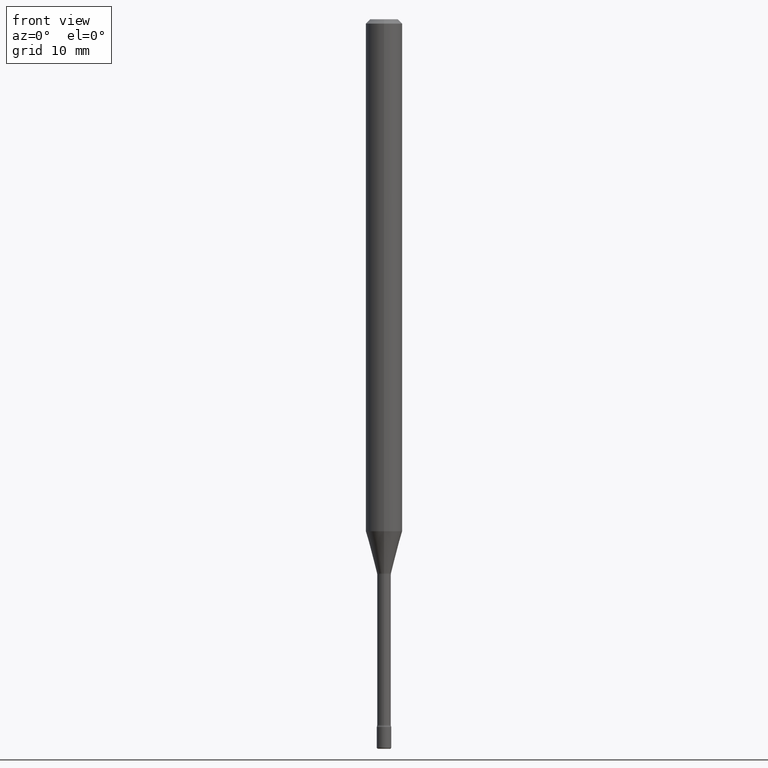
[diagram: clean part render]
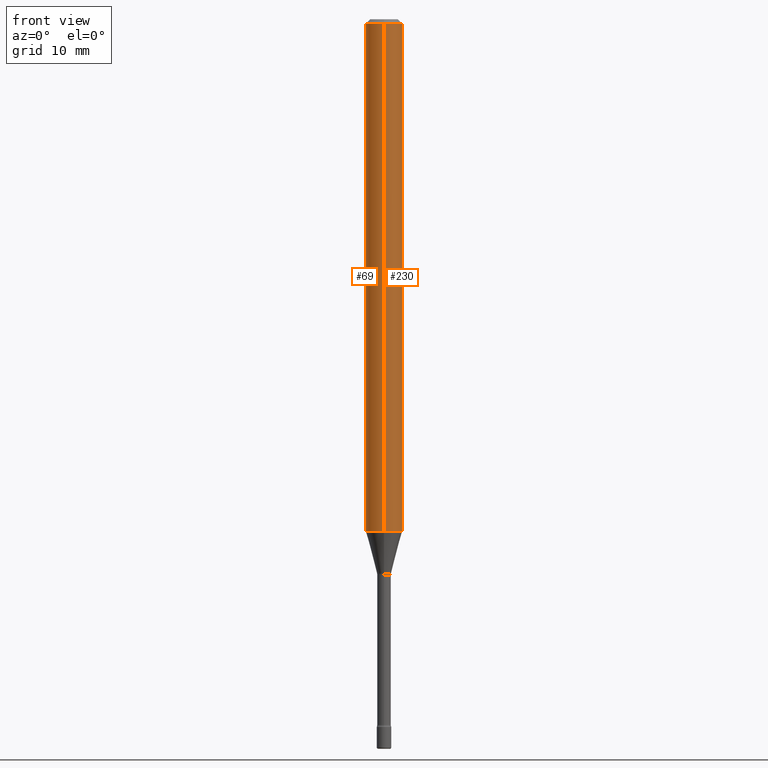
[diagram: same view with one multi-face feature highlighted, each face labeled with its STEP entity id]
A machine part, front view. The highlighted faces form ONE feature: a constant-radius fillet chain: 2 tangent blend faces with common blend radius 1.5875 mm. The faces share edges in the B-rep.
Their STEP definitions:
[1] entity #69 (Cylinder):
#8 = DIRECTION ( 'NONE',  ( -2.445403387377062590E-29, 3.491575022299715255E-15, 1.000000000000000000 ) ) ;
#11 = CARTESIAN_POINT ( 'NONE',  ( 4.440892098501058063E-16, 0.06249999999999995143, -0.01500000000000024578 ) ) ;
#18 = EDGE_CURVE ( 'NONE', #86, #570, #488, .T. ) ;
#21 = EDGE_CURVE ( 'NONE', #523, #519, #356, .T. ) ;
#35 = CARTESIAN_POINT ( 'NONE',  ( 4.290338018235424187E-29, -6.125793862484683661E-15, -1.754450018504814635 ) ) ;
#69 = ADVANCED_FACE ( 'NONE', ( #162 ), #535, .T. ) ;
#75 = DIRECTION ( 'NONE',  ( -6.982962677686265922E-15, -1.000000000000000000, 3.483106191921935554E-15 ) ) ;
#80 = ORIENTED_EDGE ( 'NONE', *, *, #444, .F. ) ;
#86 = VERTEX_POINT ( 'NONE', #199 ) ;
#106 = CARTESIAN_POINT ( 'NONE',  ( -4.364351673553916201E-16, -0.06250000000000000000, 6.962968377849783406E-16 ) ) ;
#110 = DIRECTION ( 'NONE',  ( -2.445403387377062590E-29, 3.491575022299715255E-15, 1.000000000000000000 ) ) ;
#120 = AXIS2_PLACEMENT_3D ( 'NONE', #453, #498, #548 ) ;
#122 = AXIS2_PLACEMENT_3D ( 'NONE', #504, #461, #75 ) ;
#133 = AXIS2_PLACEMENT_3D ( 'NONE', #35, #336, #509 ) ;
#140 = CARTESIAN_POINT ( 'NONE',  ( -4.364351673553912750E-16, -0.06250000000000005551, -0.01499999999999981036 ) ) ;
#162 = FACE_OUTER_BOUND ( 'NONE', #472, .T. ) ;
#199 = CARTESIAN_POINT ( 'NONE',  ( 4.440892098501052147E-16, 0.06249999999999384520, -1.754450018504814857 ) ) ;
#225 = ORIENTED_EDGE ( 'NONE', *, *, #327, .T. ) ;
#249 = CIRCLE ( 'NONE', #122, 0.06250000000000000000 ) ;
#308 = CARTESIAN_POINT ( 'NONE',  ( -4.364351673553489230E-16, -0.06250000000000614786, -1.754450018504814190 ) ) ;
#327 = EDGE_CURVE ( 'NONE', #86, #523, #346, .T. ) ;
#329 = VECTOR ( 'NONE', #110, 39.37007874015748143 ) ;
#336 = DIRECTION ( 'NONE',  ( -2.445403387377062590E-29, 3.491575022299714860E-15, 1.000000000000000000 ) ) ;
#343 = ORIENTED_EDGE ( 'NONE', *, *, #18, .F. ) ;
#346 = CIRCLE ( 'NONE', #133, 0.06250000000000000000 ) ;
#356 = LINE ( 'NONE', #106, #329 ) ;
#395 = VECTOR ( 'NONE', #8, 39.37007874015748143 ) ;
#399 = CARTESIAN_POINT ( 'NONE',  ( 4.440892098500625669E-16, 0.06250000000000000000, 2.598499599975138845E-16 ) ) ;
#444 = EDGE_CURVE ( 'NONE', #570, #519, #249, .T. ) ;
#453 = CARTESIAN_POINT ( 'NONE',  ( -1.169113584055446105E-44, 1.669184350826100908E-30, 4.780733988912460139E-16 ) ) ;
#461 = DIRECTION ( 'NONE',  ( -2.445403387377062590E-29, 3.491575022299714860E-15, 1.000000000000000000 ) ) ;
#472 = EDGE_LOOP ( 'NONE', ( #343, #225, #481, #80 ) ) ;
#481 = ORIENTED_EDGE ( 'NONE', *, *, #21, .T. ) ;
#488 = LINE ( 'NONE', #399, #395 ) ;
#498 = DIRECTION ( 'NONE',  ( -2.445403387377062590E-29, 3.491575022299714860E-15, 1.000000000000000000 ) ) ;
#504 = CARTESIAN_POINT ( 'NONE',  ( 3.668105081065600506E-31, -5.237362533449582250E-17, -0.01500000000000002720 ) ) ;
#509 = DIRECTION ( 'NONE',  ( -6.982962677686265922E-15, -1.000000000000000000, 4.370956789862821150E-15 ) ) ;
#519 = VERTEX_POINT ( 'NONE', #140 ) ;
#523 = VERTEX_POINT ( 'NONE', #308 ) ;
#535 = CYLINDRICAL_SURFACE ( 'NONE', #120, 0.06250000000000000000 ) ;
#548 = DIRECTION ( 'NONE',  ( -6.982962677686265922E-15, -1.000000000000000000, 3.491575022299715649E-15 ) ) ;
#570 = VERTEX_POINT ( 'NONE', #11 ) ;
[2] entity #230 (Cylinder):
#3 = EDGE_CURVE ( 'NONE', #519, #570, #496, .T. ) ;
#8 = DIRECTION ( 'NONE',  ( -2.445403387377062590E-29, 3.491575022299715255E-15, 1.000000000000000000 ) ) ;
#11 = CARTESIAN_POINT ( 'NONE',  ( 4.440892098501058063E-16, 0.06249999999999995143, -0.01500000000000024578 ) ) ;
#18 = EDGE_CURVE ( 'NONE', #86, #570, #488, .T. ) ;
#19 = DIRECTION ( 'NONE',  ( -2.445403387377062590E-29, 3.491575022299714860E-15, 1.000000000000000000 ) ) ;
#21 = EDGE_CURVE ( 'NONE', #523, #519, #356, .T. ) ;
#29 = FACE_OUTER_BOUND ( 'NONE', #219, .T. ) ;
#58 = EDGE_CURVE ( 'NONE', #523, #86, #293, .T. ) ;
#61 = DIRECTION ( 'NONE',  ( -6.982962677686265922E-15, -1.000000000000000000, 3.483106191921935554E-15 ) ) ;
#83 = CARTESIAN_POINT ( 'NONE',  ( -1.169113584055446105E-44, 1.669184350826100908E-30, 4.780733988912460139E-16 ) ) ;
#86 = VERTEX_POINT ( 'NONE', #199 ) ;
#98 = AXIS2_PLACEMENT_3D ( 'NONE', #450, #19, #205 ) ;
#106 = CARTESIAN_POINT ( 'NONE',  ( -4.364351673553916201E-16, -0.06250000000000000000, 6.962968377849783406E-16 ) ) ;
#110 = DIRECTION ( 'NONE',  ( -2.445403387377062590E-29, 3.491575022299715255E-15, 1.000000000000000000 ) ) ;
#140 = CARTESIAN_POINT ( 'NONE',  ( -4.364351673553912750E-16, -0.06250000000000005551, -0.01499999999999981036 ) ) ;
#179 = ORIENTED_EDGE ( 'NONE', *, *, #3, .F. ) ;
#199 = CARTESIAN_POINT ( 'NONE',  ( 4.440892098501052147E-16, 0.06249999999999384520, -1.754450018504814857 ) ) ;
#205 = DIRECTION ( 'NONE',  ( -6.982962677686265922E-15, -1.000000000000000000, 4.370956789862821150E-15 ) ) ;
#219 = EDGE_LOOP ( 'NONE', ( #355, #278, #179, #396 ) ) ;
#230 = ADVANCED_FACE ( 'NONE', ( #29 ), #512, .T. ) ;
#260 = AXIS2_PLACEMENT_3D ( 'NONE', #447, #493, #61 ) ;
#278 = ORIENTED_EDGE ( 'NONE', *, *, #18, .T. ) ;
#293 = CIRCLE ( 'NONE', #98, 0.06250000000000000000 ) ;
#306 = DIRECTION ( 'NONE',  ( -2.445403387377062590E-29, 3.491575022299714860E-15, 1.000000000000000000 ) ) ;
#308 = CARTESIAN_POINT ( 'NONE',  ( -4.364351673553489230E-16, -0.06250000000000614786, -1.754450018504814190 ) ) ;
#329 = VECTOR ( 'NONE', #110, 39.37007874015748143 ) ;
#355 = ORIENTED_EDGE ( 'NONE', *, *, #58, .T. ) ;
#356 = LINE ( 'NONE', #106, #329 ) ;
#364 = AXIS2_PLACEMENT_3D ( 'NONE', #83, #306, #465 ) ;
#395 = VECTOR ( 'NONE', #8, 39.37007874015748143 ) ;
#396 = ORIENTED_EDGE ( 'NONE', *, *, #21, .F. ) ;
#399 = CARTESIAN_POINT ( 'NONE',  ( 4.440892098500625669E-16, 0.06250000000000000000, 2.598499599975138845E-16 ) ) ;
#447 = CARTESIAN_POINT ( 'NONE',  ( 3.668105081065600506E-31, -5.237362533449582250E-17, -0.01500000000000002720 ) ) ;
#450 = CARTESIAN_POINT ( 'NONE',  ( 4.290338018235424187E-29, -6.125793862484683661E-15, -1.754450018504814635 ) ) ;
#465 = DIRECTION ( 'NONE',  ( -6.982962677686265922E-15, -1.000000000000000000, 3.491575022299715649E-15 ) ) ;
#488 = LINE ( 'NONE', #399, #395 ) ;
#493 = DIRECTION ( 'NONE',  ( -2.445403387377062590E-29, 3.491575022299714860E-15, 1.000000000000000000 ) ) ;
#496 = CIRCLE ( 'NONE', #260, 0.06250000000000000000 ) ;
#512 = CYLINDRICAL_SURFACE ( 'NONE', #364, 0.06250000000000000000 ) ;
#519 = VERTEX_POINT ( 'NONE', #140 ) ;
#523 = VERTEX_POINT ( 'NONE', #308 ) ;
#570 = VERTEX_POINT ( 'NONE', #11 ) ;